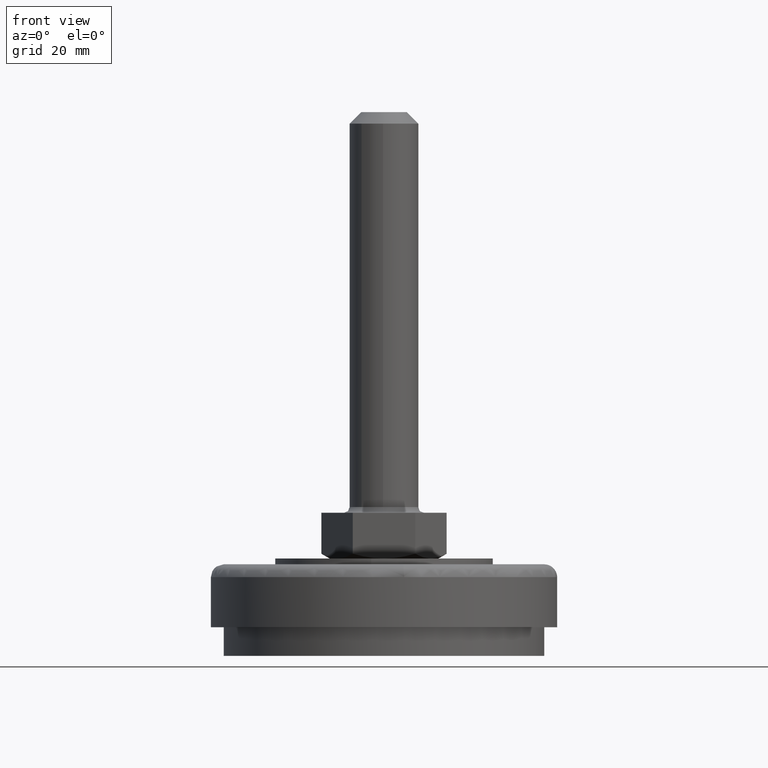
[diagram: clean part render]
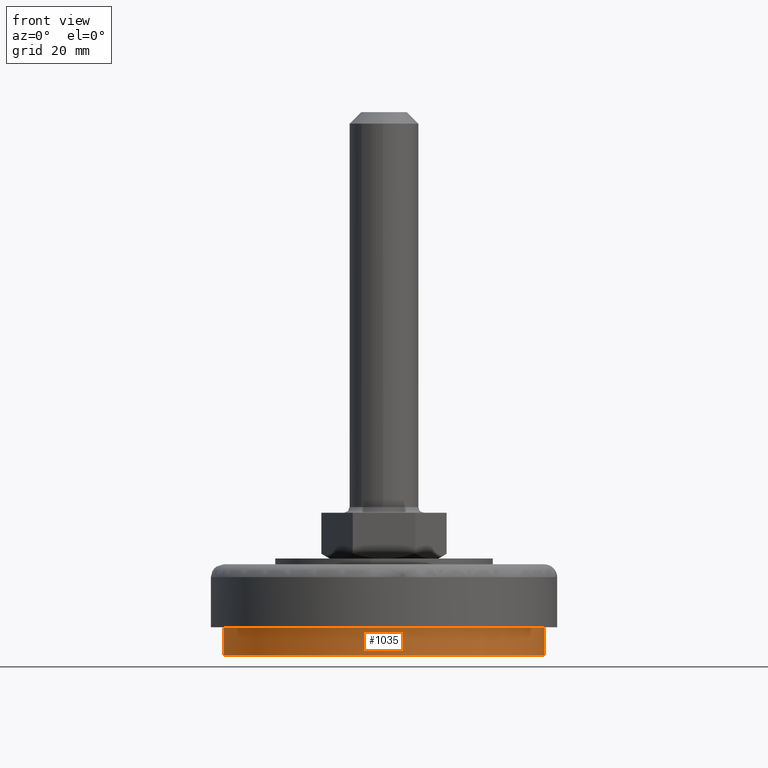
[diagram: same view with one face highlighted and labeled with its STEP entity id]
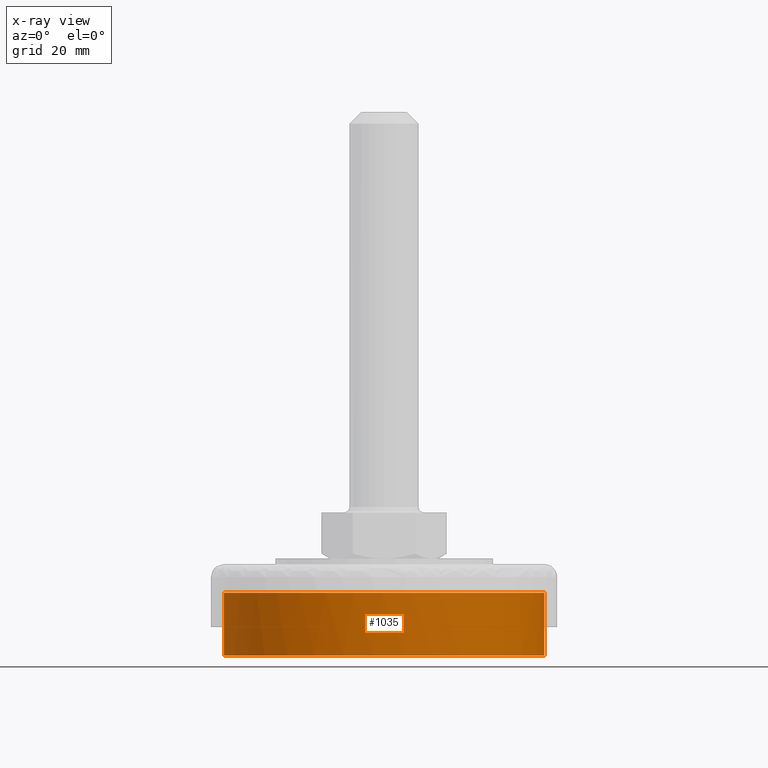
[diagram: x-ray of the same camera — body ghosted, the highlighted face saturated]
A machine part, front view. The second image highlights one B-rep face of the part: STEP entity #1035.
The next image is the same camera in x-ray: the body ghosted, the highlighted face saturated — about 0% of this face is hidden behind the body in this view.
In plain terms, the highlighted face is a freeform B-spline surface patch.
Its self-contained STEP definition (entity closure, byte-faithful):
#880=CARTESIAN_POINT('',(-19.309898797950034,20.276286849739694,-0.275000000008583));
#881=CARTESIAN_POINT('',(-28.104919807690997,11.900445312159436,-0.275000000008583));
#882=CARTESIAN_POINT('',(-27.998933845796788,-0.244342993954469,-0.275000000008583));
#883=CARTESIAN_POINT('',(-27.754590851842316,-28.243276839751257,-0.275000000008583));
#884=CARTESIAN_POINT('',(0.244342993954469,-27.998933845796788,-0.275000000008583));
#885=CARTESIAN_POINT('',(28.243276839751257,-27.754590851842316,-0.275000000008583));
#886=CARTESIAN_POINT('',(27.998933845796788,0.244342993954469,-0.275000000008583));
#887=CARTESIAN_POINT('',(27.754590851842316,28.243276839751257,-0.275000000008583));
#888=CARTESIAN_POINT('',(-0.244342993954469,27.998933845796788,-0.275000000008583));
#889=CARTESIAN_POINT('',(-19.309898797950034,20.276286849739694,11.281875000352107));
#890=CARTESIAN_POINT('',(-28.104919807690997,11.900445312159436,11.281875000352105));
#891=CARTESIAN_POINT('',(-27.998933845796788,-0.244342993954469,11.281875000352111));
#892=CARTESIAN_POINT('',(-27.754590851842316,-28.243276839751257,11.281875000352107));
#893=CARTESIAN_POINT('',(0.244342993954469,-27.998933845796788,11.281875000352111));
#894=CARTESIAN_POINT('',(28.243276839751257,-27.754590851842316,11.281875000352107));
#895=CARTESIAN_POINT('',(27.998933845796788,0.244342993954469,11.281875000352111));
#896=CARTESIAN_POINT('',(27.754590851842316,28.243276839751257,11.281875000352107));
#897=CARTESIAN_POINT('',(-0.244342993954469,27.998933845796788,11.281875000352111));
#905=(BOUNDED_SURFACE()B_SPLINE_SURFACE(2,1,((#880,#889),(#881,#890),(#882,#891),(#883,#892),(#884,#893),(#885,#894),(#886,#895),(#887,#896),(#888,#897)),.UNSPECIFIED.,.F.,.F.,.U.)B_SPLINE_SURFACE_WITH_KNOTS((3,2,2,2,3),(2,2),(0.0,24.123797872609050,70.515716858395677,116.907635844182290,163.299554829968910),(0.0,11.556875000360691),.UNSPECIFIED.)GEOMETRIC_REPRESENTATION_ITEM()RATIONAL_B_SPLINE_SURFACE(((0.853787705168325,0.853787705168325),(0.847695526217005,0.847695526217005),(1.0,1.0),(0.707106781186548,0.707106781186548),(1.0,1.0),(0.707106781186548,0.707106781186548),(1.0,1.0),(0.707106781186548,0.707106781186548),(1.0,1.0)))REPRESENTATION_ITEM('')SURFACE());
#906=CARTESIAN_POINT('',(-19.309898155932419,20.276287461158081,-1.451516E-014));
#907=VERTEX_POINT('',#906);
#908=CARTESIAN_POINT('',(-28.0,0.0,0.0));
#909=VERTEX_POINT('',#908);
#910=CARTESIAN_POINT('',(-19.309898155932419,20.276287461158084,-1.451516E-014));
#911=CARTESIAN_POINT('',(-28.0,12.000365586612370,0.0));
#912=CARTESIAN_POINT('',(-28.0,0.0,0.0));
#920=(BOUNDED_CURVE()B_SPLINE_CURVE(2,(#910,#911,#912),.UNSPECIFIED.,.F.,.U.)B_SPLINE_CURVE_WITH_KNOTS((3,3),(0.871317014292787,1.0),.UNSPECIFIED.)CURVE()GEOMETRIC_REPRESENTATION_ITEM()RATIONAL_B_SPLINE_CURVE((0.853680523905556,0.849238504438756,1.0))REPRESENTATION_ITEM(''));
#921=EDGE_CURVE('',#907,#909,#920,.T.);
#922=ORIENTED_EDGE('',*,*,#921,.T.);
#923=CARTESIAN_POINT('',(28.0,0.0,0.0));
#924=VERTEX_POINT('',#923);
#925=CARTESIAN_POINT('',(-28.0,0.0,0.0));
#926=CARTESIAN_POINT('',(-28.000000000000004,-28.000000000000004,0.0));
#927=CARTESIAN_POINT('',(0.0,-28.0,0.0));
#928=CARTESIAN_POINT('',(28.000000000000004,-28.000000000000004,0.0));
#929=CARTESIAN_POINT('',(28.0,0.0,0.0));
#937=(BOUNDED_CURVE()B_SPLINE_CURVE(2,(#925,#926,#927,#928,#929),.UNSPECIFIED.,.F.,.U.)B_SPLINE_CURVE_WITH_KNOTS((3,2,3),(0.0,0.250000000000000,0.500000000000000),.UNSPECIFIED.)CURVE()GEOMETRIC_REPRESENTATION_ITEM()RATIONAL_B_SPLINE_CURVE((1.0,0.707106781186547,1.0,0.707106781186547,1.0))REPRESENTATION_ITEM(''));
#938=EDGE_CURVE('',#909,#924,#937,.T.);
#939=ORIENTED_EDGE('',*,*,#938,.T.);
#940=CARTESIAN_POINT('',(-0.244315314502062,27.998934087324340,1.882106E-013));
#941=VERTEX_POINT('',#940);
#942=CARTESIAN_POINT('',(28.0,0.0,0.0));
#943=CARTESIAN_POINT('',(28.000000000000004,28.000000000000004,0.0));
#944=CARTESIAN_POINT('',(0.0,28.0,0.0));
#945=CARTESIAN_POINT('',(-0.122159982463093,28.0,0.0));
#946=CARTESIAN_POINT('',(-0.244315314502062,27.998934087324344,1.882106E-013));
#954=(BOUNDED_CURVE()B_SPLINE_CURVE(2,(#942,#943,#944,#945,#946),.UNSPECIFIED.,.F.,.U.)B_SPLINE_CURVE_WITH_KNOTS((3,2,3),(0.500000000000000,0.750000000000000,0.751539720202049),.UNSPECIFIED.)CURVE()GEOMETRIC_REPRESENTATION_ITEM()RATIONAL_B_SPLINE_CURVE((1.0,0.707106781186547,1.0,0.998196105575799,0.996414431093096))REPRESENTATION_ITEM(''));
#955=EDGE_CURVE('',#924,#941,#954,.T.);
#956=ORIENTED_EDGE('',*,*,#955,.T.);
#957=CARTESIAN_POINT('',(-0.244315684938147,27.998934084092330,11.0));
#958=VERTEX_POINT('',#957);
#959=CARTESIAN_POINT('',(-0.244315314502062,27.998934087324340,1.882106E-013));
#960=CARTESIAN_POINT('',(-0.244315684938147,27.998934084092330,11.0));
#961=QUASI_UNIFORM_CURVE('',1,(#959,#960),.UNSPECIFIED.,.F.,.U.);
#962=EDGE_CURVE('',#941,#958,#961,.T.);
#963=ORIENTED_EDGE('',*,*,#962,.T.);
#964=CARTESIAN_POINT('',(28.0,2.394706E-016,11.000000000339430));
#965=VERTEX_POINT('',#964);
#966=CARTESIAN_POINT('',(-0.244315684938147,27.998934084092326,11.000000000000002));
#967=CARTESIAN_POINT('',(-0.122160167691710,28.0,10.999999999999996));
#968=CARTESIAN_POINT('',(0.0,28.0,11.0));
#969=CARTESIAN_POINT('',(28.000000000000004,28.000000000000004,11.0));
#970=CARTESIAN_POINT('',(28.0,2.394706E-016,11.000000000339430));
#978=(BOUNDED_CURVE()B_SPLINE_CURVE(2,(#966,#967,#968,#969,#970),.UNSPECIFIED.,.F.,.U.)B_SPLINE_CURVE_WITH_KNOTS((3,2,3),(0.248460277467517,0.250000000000000,0.500000000000000),.UNSPECIFIED.)CURVE()GEOMETRIC_REPRESENTATION_ITEM()RATIONAL_B_SPLINE_CURVE((0.996414425699812,0.998196102845526,1.0,0.707106781186547,1.0))REPRESENTATION_ITEM(''));
#979=EDGE_CURVE('',#958,#965,#978,.T.);
#980=ORIENTED_EDGE('',*,*,#979,.T.);
#981=CARTESIAN_POINT('',(9.892455066489415,-26.194261447070570,11.000000000343309));
#982=VERTEX_POINT('',#981);
#983=CARTESIAN_POINT('',(28.0,2.394706E-016,11.000000000339430));
#984=CARTESIAN_POINT('',(28.0,-19.355814217654331,11.0));
#985=CARTESIAN_POINT('',(9.892455066489415,-26.194261447070570,11.000000000343309));
#993=(BOUNDED_CURVE()B_SPLINE_CURVE(2,(#983,#984,#985),.UNSPECIFIED.,.F.,.U.)B_SPLINE_CURVE_WITH_KNOTS((3,3),(0.500000000000000,0.689999999999921),.UNSPECIFIED.)CURVE()GEOMETRIC_REPRESENTATION_ITEM()RATIONAL_B_SPLINE_CURVE((1.0,0.777401153701868,0.893152553776757))REPRESENTATION_ITEM(''));
#994=EDGE_CURVE('',#965,#982,#993,.T.);
#995=ORIENTED_EDGE('',*,*,#994,.T.);
#996=CARTESIAN_POINT('',(-28.0,0.0,11.0));
#997=VERTEX_POINT('',#996);
#998=CARTESIAN_POINT('',(9.892455066489415,-26.194261447070570,11.000000000343308));
#999=CARTESIAN_POINT('',(5.111034535131097,-27.999999999999996,11.000000000000004));
#1000=CARTESIAN_POINT('',(0.0,-28.0,11.0));
#1001=CARTESIAN_POINT('',(-28.000000000000004,-28.000000000000004,11.0));
#1002=CARTESIAN_POINT('',(-28.0,0.0,11.0));
#1010=(BOUNDED_CURVE()B_SPLINE_CURVE(2,(#998,#999,#1000,#1001,#1002),.UNSPECIFIED.,.F.,.U.)B_SPLINE_CURVE_WITH_KNOTS((3,2,3),(0.689999999999920,0.750000000000000,1.0),.UNSPECIFIED.)CURVE()GEOMETRIC_REPRESENTATION_ITEM()RATIONAL_B_SPLINE_CURVE((0.893152553776755,0.929705627484678,1.0,0.707106781186547,1.0))REPRESENTATION_ITEM(''));
#1011=EDGE_CURVE('',#982,#997,#1010,.T.);
#1012=ORIENTED_EDGE('',*,*,#1011,.T.);
#1013=CARTESIAN_POINT('',(-19.309897966577680,20.276287641487968,11.0));
#1014=VERTEX_POINT('',#1013);
#1015=CARTESIAN_POINT('',(-28.0,0.0,11.0));
#1016=CARTESIAN_POINT('',(-27.999999999999996,12.000365216656000,11.000000000000002));
#1017=CARTESIAN_POINT('',(-19.309897966577701,20.276287641487986,10.999999999999998));
#1025=(BOUNDED_CURVE()B_SPLINE_CURVE(2,(#1015,#1016,#1017),.UNSPECIFIED.,.F.,.U.)B_SPLINE_CURVE_WITH_KNOTS((3,3),(0.0,0.128682982338168),.UNSPECIFIED.)CURVE()GEOMETRIC_REPRESENTATION_ITEM()RATIONAL_B_SPLINE_CURVE((1.0,0.849238508385838,0.853680523672964))REPRESENTATION_ITEM(''));
#1026=EDGE_CURVE('',#997,#1014,#1025,.T.);
#1027=ORIENTED_EDGE('',*,*,#1026,.T.);
#1028=CARTESIAN_POINT('',(-19.309898155932419,20.276287461158081,-1.451516E-014));
#1029=CARTESIAN_POINT('',(-19.309897966577680,20.276287641487968,11.0));
#1030=QUASI_UNIFORM_CURVE('',1,(#1028,#1029),.UNSPECIFIED.,.F.,.U.);
#1031=EDGE_CURVE('',#907,#1014,#1030,.T.);
#1032=ORIENTED_EDGE('',*,*,#1031,.F.);
#1033=EDGE_LOOP('',(#922,#939,#956,#963,#980,#995,#1012,#1027,#1032));
#1034=FACE_OUTER_BOUND('',#1033,.T.);
#1035=ADVANCED_FACE('',(#1034),#905,.T.);